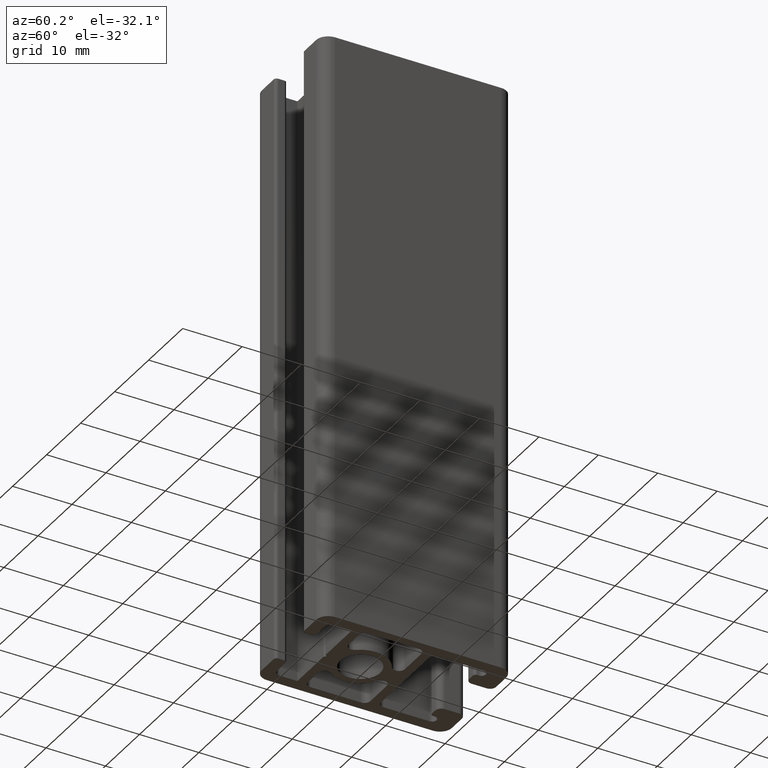
[diagram: clean part render]
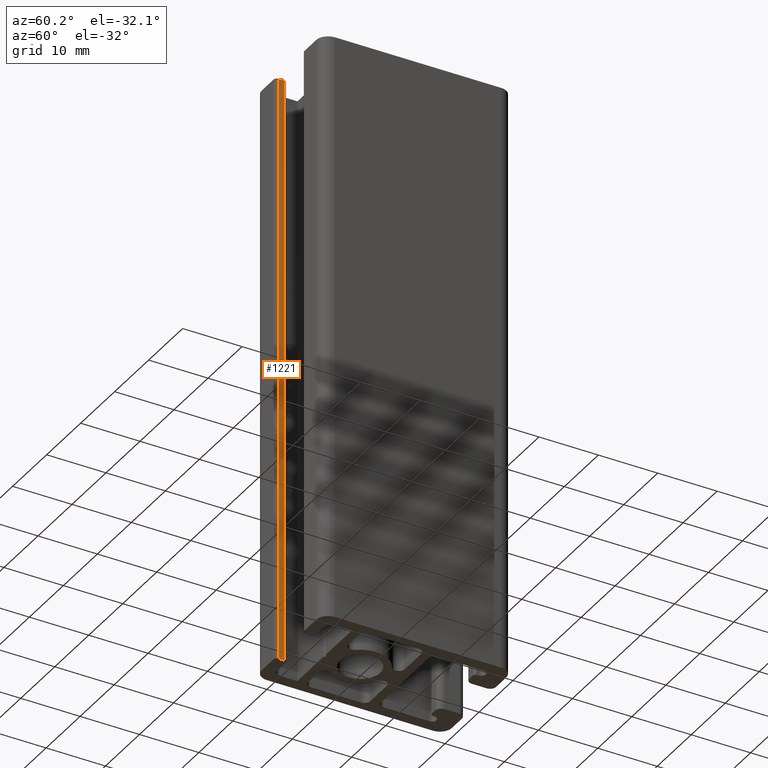
[diagram: same view with one face highlighted and labeled with its STEP entity id]
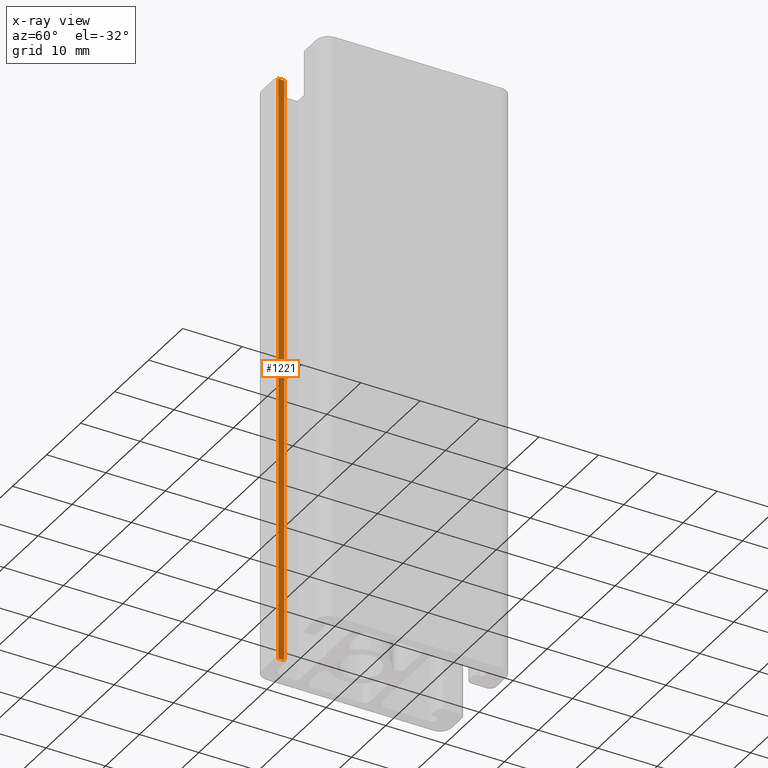
[diagram: x-ray of the same camera — body ghosted, the highlighted face saturated]
A machine part, auxiliary view. The second image highlights one B-rep face of the part: STEP entity #1221.
The next image is the same camera in x-ray: the body ghosted, the highlighted face saturated — about 0% of this face is hidden behind the body in this view.
In plain terms, the highlighted planar face has unit normal (-1, 0, 0).
Its self-contained STEP definition (entity closure, byte-faithful):
#27=PLANE('',#1303);
#68=FACE_OUTER_BOUND('',#132,.T.);
#132=EDGE_LOOP('',(#859,#860,#861,#862));
#214=LINE('',#1861,#337);
#215=LINE('',#1864,#338);
#216=LINE('',#1866,#339);
#217=LINE('',#1867,#340);
#337=VECTOR('',#1484,100.);
#338=VECTOR('',#1487,0.999999999999999);
#339=VECTOR('',#1488,0.999999999999999);
#340=VECTOR('',#1489,100.);
#525=VERTEX_POINT('',#1855);
#527=VERTEX_POINT('',#1859);
#528=VERTEX_POINT('',#1863);
#529=VERTEX_POINT('',#1865);
#662=EDGE_CURVE('',#527,#525,#214,.T.);
#663=EDGE_CURVE('',#525,#528,#215,.T.);
#664=EDGE_CURVE('',#529,#527,#216,.T.);
#665=EDGE_CURVE('',#529,#528,#217,.T.);
#859=ORIENTED_EDGE('',*,*,#663,.F.);
#860=ORIENTED_EDGE('',*,*,#662,.F.);
#861=ORIENTED_EDGE('',*,*,#664,.F.);
#862=ORIENTED_EDGE('',*,*,#665,.T.);
#1221=ADVANCED_FACE('',(#68),#27,.F.);
#1303=AXIS2_PLACEMENT_3D('',#1862,#1485,#1486);
#1484=DIRECTION('',(0.,0.,1.));
#1485=DIRECTION('center_axis',(-1.,0.,0.));
#1486=DIRECTION('ref_axis',(0.,0.,1.));
#1487=DIRECTION('',(0.,1.,0.));
#1488=DIRECTION('',(0.,-1.,0.));
#1489=DIRECTION('',(0.,0.,1.));
#1855=CARTESIAN_POINT('',(-4.,-11.5,100.));
#1859=CARTESIAN_POINT('',(-4.,-11.5,0.));
#1861=CARTESIAN_POINT('',(-4.,-11.5,0.));
#1862=CARTESIAN_POINT('Origin',(-4.,-11.5,0.));
#1863=CARTESIAN_POINT('',(-4.,-10.5,100.));
#1864=CARTESIAN_POINT('',(-4.,-3.75,100.));
#1865=CARTESIAN_POINT('',(-4.,-10.5,0.));
#1866=CARTESIAN_POINT('',(-4.,-3.75,0.));
#1867=CARTESIAN_POINT('',(-4.,-10.5,0.));